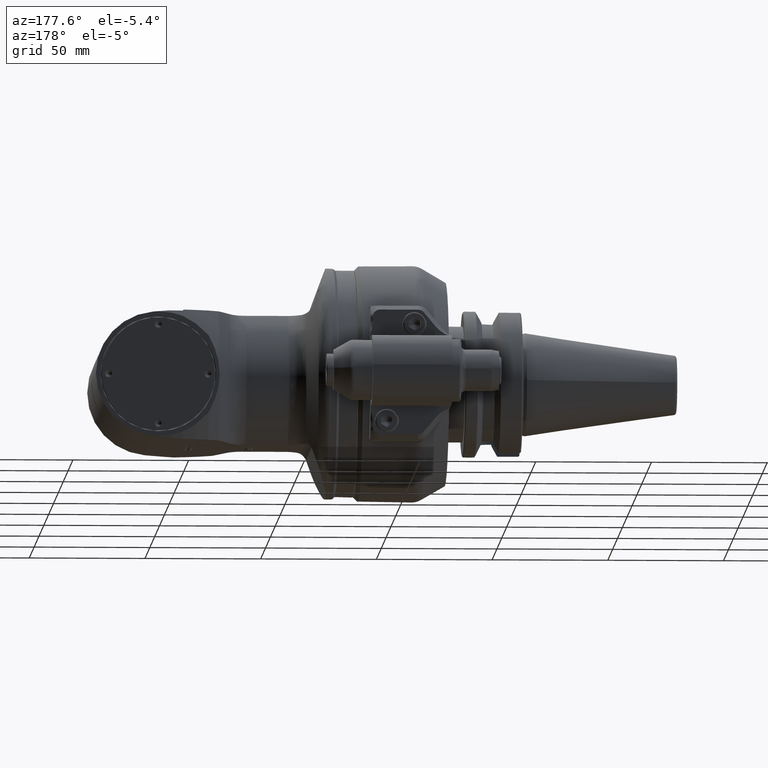
[diagram: clean part render]
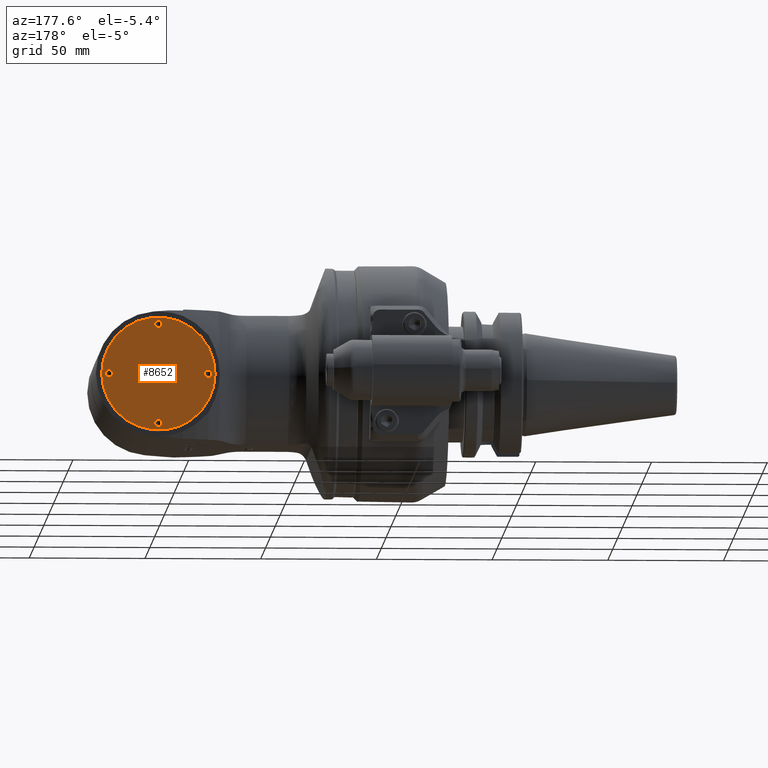
[diagram: same view with one face highlighted and labeled with its STEP entity id]
A machine part, auxiliary view. The second image highlights one B-rep face of the part: STEP entity #8652.
In plain terms, the highlighted planar face has unit normal (0, -1, -0).
Its self-contained STEP definition (entity closure, byte-faithful):
#242=FACE_BOUND('',#1890,.T.);
#243=FACE_BOUND('',#1891,.T.);
#244=FACE_BOUND('',#1892,.T.);
#245=FACE_BOUND('',#1893,.T.);
#894=CIRCLE('',#9424,24.5);
#895=CIRCLE('',#9426,1.6);
#896=CIRCLE('',#9427,1.6);
#897=CIRCLE('',#9428,1.6);
#898=CIRCLE('',#9429,1.6);
#1336=FACE_OUTER_BOUND('',#1889,.T.);
#1889=EDGE_LOOP('',(#6519));
#1890=EDGE_LOOP('',(#6520));
#1891=EDGE_LOOP('',(#6521));
#1892=EDGE_LOOP('',(#6522));
#1893=EDGE_LOOP('',(#6523));
#3719=VERTEX_POINT('',#14143);
#3720=VERTEX_POINT('',#14147);
#3721=VERTEX_POINT('',#14149);
#3722=VERTEX_POINT('',#14151);
#3723=VERTEX_POINT('',#14153);
#4744=EDGE_CURVE('',#3719,#3719,#894,.T.);
#4745=EDGE_CURVE('',#3720,#3720,#895,.T.);
#4746=EDGE_CURVE('',#3721,#3721,#896,.T.);
#4747=EDGE_CURVE('',#3722,#3722,#897,.T.);
#4748=EDGE_CURVE('',#3723,#3723,#898,.T.);
#6519=ORIENTED_EDGE('',*,*,#4744,.T.);
#6520=ORIENTED_EDGE('',*,*,#4745,.T.);
#6521=ORIENTED_EDGE('',*,*,#4746,.T.);
#6522=ORIENTED_EDGE('',*,*,#4747,.T.);
#6523=ORIENTED_EDGE('',*,*,#4748,.T.);
#8299=PLANE('',#9425);
#8652=ADVANCED_FACE('',(#1336,#242,#243,#244,#245),#8299,.F.);
#9424=AXIS2_PLACEMENT_3D('',#14145,#10931,#10932);
#9425=AXIS2_PLACEMENT_3D('',#14146,#10933,#10934);
#9426=AXIS2_PLACEMENT_3D('',#14148,#10935,#10936);
#9427=AXIS2_PLACEMENT_3D('',#14150,#10937,#10938);
#9428=AXIS2_PLACEMENT_3D('',#14152,#10939,#10940);
#9429=AXIS2_PLACEMENT_3D('',#14154,#10941,#10942);
#10931=DIRECTION('center_axis',(0.,1.,0.));
#10932=DIRECTION('ref_axis',(1.,0.,0.));
#10933=DIRECTION('center_axis',(0.,-1.,0.));
#10934=DIRECTION('ref_axis',(-1.,0.,0.));
#10935=DIRECTION('center_axis',(0.,-1.,0.));
#10936=DIRECTION('ref_axis',(0.,0.,1.));
#10937=DIRECTION('center_axis',(0.,-1.,0.));
#10938=DIRECTION('ref_axis',(0.,0.,1.));
#10939=DIRECTION('center_axis',(0.,-1.,0.));
#10940=DIRECTION('ref_axis',(0.,0.,1.));
#10941=DIRECTION('center_axis',(0.,-1.,0.));
#10942=DIRECTION('ref_axis',(0.,0.,1.));
#14143=CARTESIAN_POINT('',(114.5,45.,0.));
#14145=CARTESIAN_POINT('Origin',(90.,45.,0.));
#14146=CARTESIAN_POINT('Origin',(68.675,45.,0.));
#14147=CARTESIAN_POINT('',(90.,45.,-23.1));
#14148=CARTESIAN_POINT('Origin',(90.,45.,-21.5));
#14149=CARTESIAN_POINT('',(68.5,45.,-1.6));
#14150=CARTESIAN_POINT('Origin',(68.5,45.,0.));
#14151=CARTESIAN_POINT('',(90.,45.,19.9));
#14152=CARTESIAN_POINT('Origin',(90.,45.,21.5));
#14153=CARTESIAN_POINT('',(111.5,45.,-1.6));
#14154=CARTESIAN_POINT('Origin',(111.5,45.,0.));